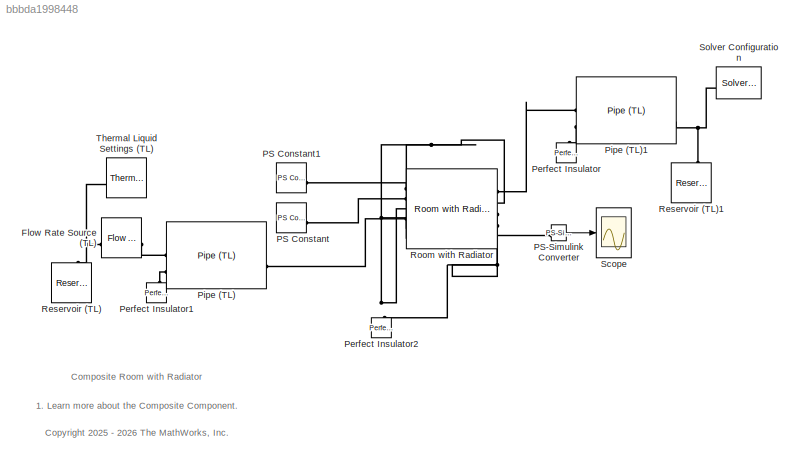
MODEL slx_bbbda1998448
KIND model
CONFIG AbsTol = 1e-3
CONFIG EnableMultiTasking = off
CONFIG FixedStep = 3600
CONFIG MaxStep = .5
CONFIG MinStep = auto
CONFIG PreLoadFcn = WallModelParams
CONFIG RelTol = 1e-3
CONFIG SampleTimeConstraint = Unconstrained
CONFIG SolverName = daessc
CONFIG StartTime = 0.0
CONFIG StopTime = 7200
BLOCK [Reference] Flow Rate Source (TL)  REF=fl_lib/Thermal Liquid/Sources/Flow Rate Source
(TL)
  SourceBlock = fl_lib/Thermal Liquid/Sources/Flow Rate Source\n(TL)
  SourceType = Flow Rate Source\n(TL)
BLOCK [Reference] PS Constant  REF=fl_lib/Physical Signals/Sources/PS Constant
  SourceBlock = fl_lib/Physical Signals/Sources/PS Constant
  SourceType = PS Constant
BLOCK [Reference] PS Constant1  REF=fl_lib/Physical Signals/Sources/PS Constant
  SourceBlock = fl_lib/Physical Signals/Sources/PS Constant
  SourceType = PS Constant
BLOCK [Reference] PS-Simulink Converter  REF=nesl_utility/PS-Simulink
Converter
  SourceBlock = nesl_utility/PS-Simulink\nConverter
  SourceType = PS-Simulink\nConverter
BLOCK [Reference] Perfect Insulator  REF=fl_lib/Thermal/Thermal Elements/Perfect Insulator
  NameLocation = right
  SourceBlock = fl_lib/Thermal/Thermal Elements/Perfect Insulator
  SourceType = Perfect Insulator
BLOCK [Reference] Perfect Insulator1  REF=fl_lib/Thermal/Thermal Elements/Perfect Insulator
  NameLocation = right
  SourceBlock = fl_lib/Thermal/Thermal Elements/Perfect Insulator
  SourceType = Perfect Insulator
BLOCK [Reference] Perfect Insulator2  REF=fl_lib/Thermal/Thermal Elements/Perfect Insulator
  NameLocation = right
  SourceBlock = fl_lib/Thermal/Thermal Elements/Perfect Insulator
  SourceType = Perfect Insulator
BLOCK [Reference] Pipe (TL)  REF=fl_lib/Thermal Liquid/Elements/Pipe (TL)
  SourceBlock = fl_lib/Thermal Liquid/Elements/Pipe (TL)
  SourceType = Pipe (TL)
BLOCK [Reference] Pipe (TL)1  REF=fl_lib/Thermal Liquid/Elements/Pipe (TL)
  SourceBlock = fl_lib/Thermal Liquid/Elements/Pipe (TL)
  SourceType = Pipe (TL)
BLOCK [Reference] Reservoir (TL)  REF=fl_lib/Thermal Liquid/Elements/Reservoir (TL)
  NameLocation = right
  SourceBlock = fl_lib/Thermal Liquid/Elements/Reservoir (TL)
  SourceType = Reservoir (TL)
BLOCK [Reference] Reservoir (TL)1  REF=fl_lib/Thermal Liquid/Elements/Reservoir (TL)
  NameLocation = right
  SourceBlock = fl_lib/Thermal Liquid/Elements/Reservoir (TL)
  SourceType = Reservoir (TL)
BLOCK [Reference] Room with Radiator  REF=RoomWithRadiator/Room with Radiator
  SourceBlock = RoomWithRadiator/Room with Radiator
BLOCK [Scope] Scope
  ActiveDisplayYMaximum = 313.55665799811783
  ActiveDisplayYMinimum = 298.49287280146734
  Floating = off
  GraphicalSettings = {"Style":{"BackgroundColor":[0.12941176470588237,0.12941176470588237,0.12941176470588237],"AxesColor":[0.07058823529411765,0.07058823529411765,0.07058823529411765],"LabelsColor":[0.8509803921568627,0.8509803921568627,0.8509803921568627],"PreserveColors":false,"Visible":[true],"LineStyle":["-"],"LineWidth":[1.5],"BarWidth":[0.9],"LineColor":["auto"],"LineFaceAlpha":[1],"LineEdgeAlpha":[1],"Marker":...<+2036ch>
  MultipleDisplayCache = [{"MaxYLimMag":313.55665799811783,"MaxYLimReal":313.55665799811783,"MinYLimMag":298.49287280146734,"MinYLimReal":298.49287280146734,"PlotAsMagnitudePhase":false,"ShowGrid":true,"ShowLegend":false,"Title":"%<SignalLabel>","YLabel":""}]
  NumInputPorts = 1
  ScopeFrameLocation = window
  WasSavedAsWebScope = on
  WindowPosition = [1092.000000,360.000000,421.000000,399.000000,]
BLOCK [Reference] Solver Configuration  REF=nesl_utility/Solver
Configuration
  SourceBlock = nesl_utility/Solver\nConfiguration
  SourceType = Solver\nConfiguration
BLOCK [Reference] Thermal Liquid Settings (TL)  REF=fl_lib/Thermal Liquid/Utilities/Thermal Liquid
Settings (TL)
  SourceBlock = fl_lib/Thermal Liquid/Utilities/Thermal Liquid\nSettings (TL)
  SourceType = Thermal Liquid\nSettings (TL)
ANNOTATION (root): 1. Learn more about the Composite Component .
ANNOTATION (root): Composite Room with Radiator
ANNOTATION (root): <copyright redacted>
LINE PS-Simulink Converter:1 -> Scope:1
PNET net1: Flow Rate Source (TL):LConn1 -- Reservoir (TL):LConn1 -- Thermal Liquid Settings (TL):RConn1
PLINE Flow Rate Source (TL):RConn1 -- Pipe (TL):LConn1
PLINE PS Constant1:RConn1 -- Room with Radiator:LConn1
PLINE PS Constant:RConn1 -- Room with Radiator:LConn2
PLINE PS-Simulink Converter:LConn1 -- Room with Radiator:RConn3
PLINE Perfect Insulator1:LConn1 -- Pipe (TL):LConn2
PNET net2: Perfect Insulator2:LConn1 -- Room with Radiator:LConn3 -- Room with Radiator:LConn5 -- Room with Radiator:LConn6 -- Room with Radiator:RConn2 -- Room with Radiator:RConn4 -- Room with Radiator:RConn5
PLINE Perfect Insulator:LConn1 -- Pipe (TL)1:LConn2
PLINE Pipe (TL)1:LConn1 -- Room with Radiator:RConn1
PNET net3: Pipe (TL)1:RConn1 -- Reservoir (TL)1:LConn1 -- Solver Configuration:RConn1
PLINE Pipe (TL):RConn1 -- Room with Radiator:LConn4
note: PNET lines group multi-terminal physical nets as a canonical sorted terminal list (undirected conserving connections); 2-terminal nets keep the pairwise PLINE form
